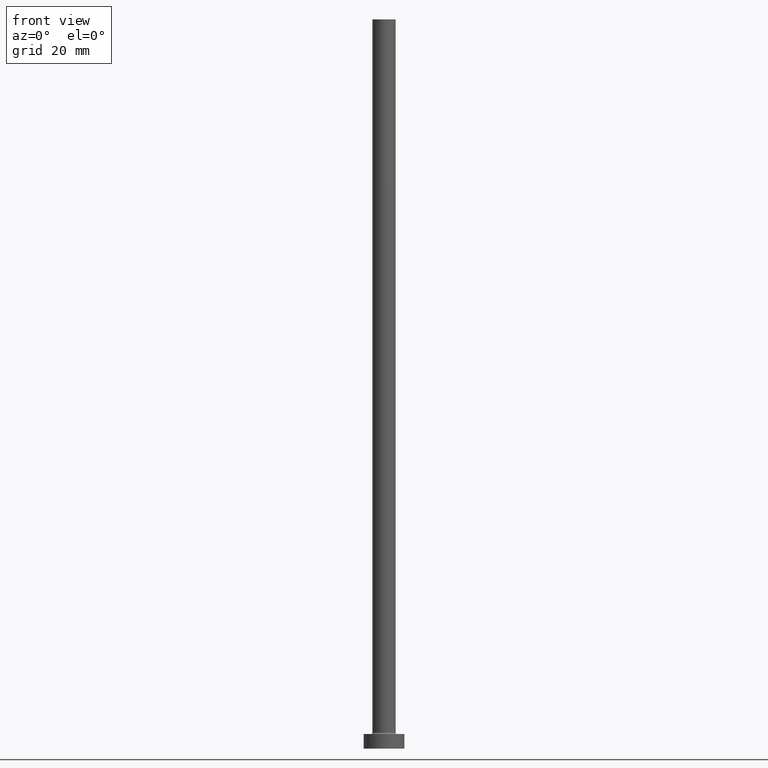
[diagram: clean part render]
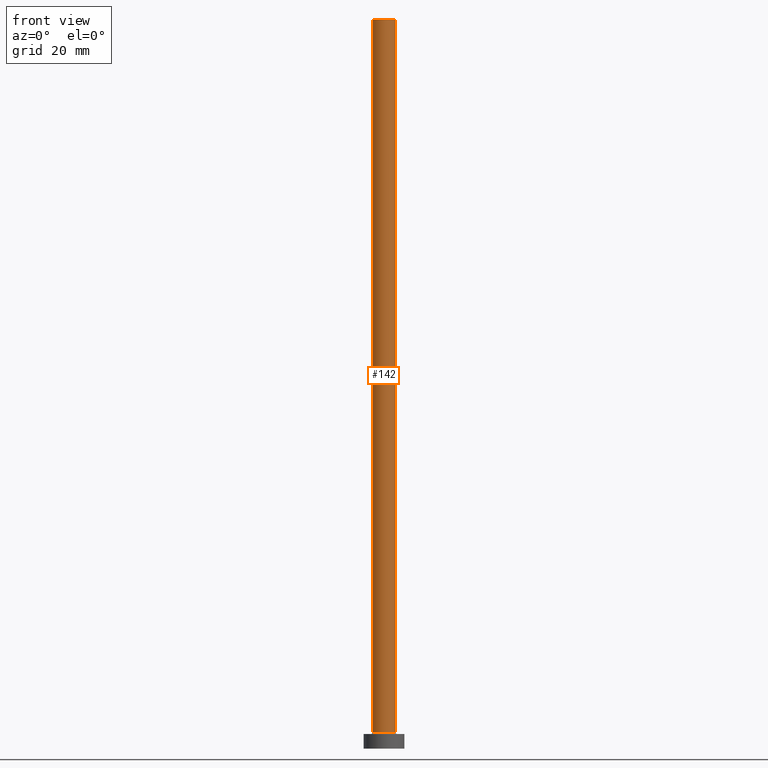
[diagram: same view with one face highlighted and labeled with its STEP entity id]
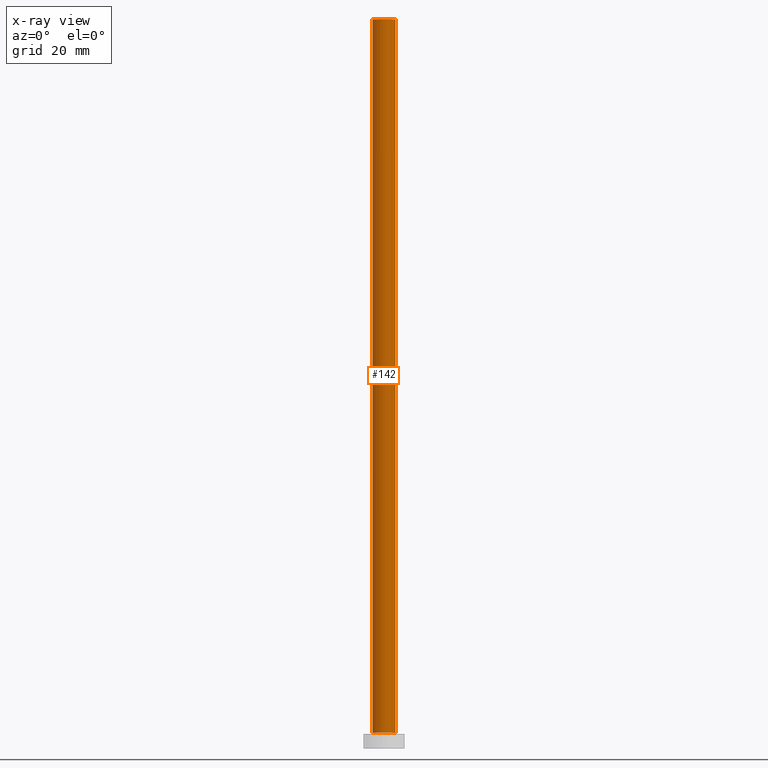
[diagram: x-ray of the same camera — body ghosted, the highlighted face saturated]
A machine part, front view. The second image highlights one B-rep face of the part: STEP entity #142.
The next image is the same camera in x-ray: the body ghosted, the highlighted face saturated — about 0% of this face is hidden behind the body in this view.
In plain terms, the highlighted cylindrical surface (edge-blend (fillet) strip) has radius 4 mm, axis along (-0, -0, -1).
Its self-contained STEP definition (entity closure, byte-faithful):
#7 = VERTEX_POINT ( 'NONE', #350 ) ;
#11 = DIRECTION ( 'NONE',  ( -0.000000000000000000, -0.000000000000000000, -1.000000000000000000 ) ) ;
#29 = CARTESIAN_POINT ( 'NONE',  ( 0.000000000000000000, 0.000000000000000000, 250.0000000000000000 ) ) ;
#40 = VECTOR ( 'NONE', #315, 1000.000000000000000 ) ;
#45 = EDGE_CURVE ( 'NONE', #157, #92, #418, .T. ) ;
#48 = ORIENTED_EDGE ( 'NONE', *, *, #325, .F. ) ;
#52 = AXIS2_PLACEMENT_3D ( 'NONE', #136, #387, #101 ) ;
#56 = ORIENTED_EDGE ( 'NONE', *, *, #376, .T. ) ;
#92 = VERTEX_POINT ( 'NONE', #117 ) ;
#101 = DIRECTION ( 'NONE',  ( 1.000000000000000000, 0.000000000000000000, 0.000000000000000000 ) ) ;
#107 = DIRECTION ( 'NONE',  ( 1.000000000000000000, 0.000000000000000000, 0.000000000000000000 ) ) ;
#117 = CARTESIAN_POINT ( 'NONE',  ( 4.000000000000000000, 4.898587196589412829E-16, 5.500000000000005329 ) ) ;
#128 = EDGE_LOOP ( 'NONE', ( #295, #48, #56, #198 ) ) ;
#135 = CARTESIAN_POINT ( 'NONE',  ( -4.000000000000000000, 0.000000000000000000, 250.0000000000000000 ) ) ;
#136 = CARTESIAN_POINT ( 'NONE',  ( 0.000000000000000000, 0.000000000000000000, 5.500000000000005329 ) ) ;
#142 = ADVANCED_FACE ( 'NONE', ( #156 ), #300, .T. ) ;
#156 = FACE_OUTER_BOUND ( 'NONE', #128, .T. ) ;
#157 = VERTEX_POINT ( 'NONE', #159 ) ;
#159 = CARTESIAN_POINT ( 'NONE',  ( 4.000000000000000000, 4.898587196589412829E-16, 250.0000000000000000 ) ) ;
#190 = AXIS2_PLACEMENT_3D ( 'NONE', #29, #459, #107 ) ;
#198 = ORIENTED_EDGE ( 'NONE', *, *, #364, .T. ) ;
#209 = DIRECTION ( 'NONE',  ( -0.000000000000000000, -0.000000000000000000, -1.000000000000000000 ) ) ;
#258 = VERTEX_POINT ( 'NONE', #454 ) ;
#264 = DIRECTION ( 'NONE',  ( -1.000000000000000000, 0.000000000000000000, 0.000000000000000000 ) ) ;
#295 = ORIENTED_EDGE ( 'NONE', *, *, #45, .F. ) ;
#300 = CYLINDRICAL_SURFACE ( 'NONE', #455, 4.000000000000000000 ) ;
#315 = DIRECTION ( 'NONE',  ( -0.000000000000000000, -0.000000000000000000, -1.000000000000000000 ) ) ;
#321 = CIRCLE ( 'NONE', #190, 4.000000000000000000 ) ;
#325 = EDGE_CURVE ( 'NONE', #7, #157, #321, .T. ) ;
#343 = LINE ( 'NONE', #135, #347 ) ;
#347 = VECTOR ( 'NONE', #209, 1000.000000000000000 ) ;
#350 = CARTESIAN_POINT ( 'NONE',  ( -4.000000000000000000, 0.000000000000000000, 250.0000000000000000 ) ) ;
#364 = EDGE_CURVE ( 'NONE', #258, #92, #392, .T. ) ;
#376 = EDGE_CURVE ( 'NONE', #7, #258, #343, .T. ) ;
#382 = CARTESIAN_POINT ( 'NONE',  ( 4.000000000000000000, 4.898587196589412829E-16, 250.0000000000000000 ) ) ;
#387 = DIRECTION ( 'NONE',  ( 0.000000000000000000, 0.000000000000000000, 1.000000000000000000 ) ) ;
#392 = CIRCLE ( 'NONE', #52, 4.000000000000000000 ) ;
#418 = LINE ( 'NONE', #382, #40 ) ;
#438 = CARTESIAN_POINT ( 'NONE',  ( 0.000000000000000000, 0.000000000000000000, 250.0000000000000000 ) ) ;
#454 = CARTESIAN_POINT ( 'NONE',  ( -4.000000000000000000, 0.000000000000000000, 5.500000000000005329 ) ) ;
#455 = AXIS2_PLACEMENT_3D ( 'NONE', #438, #11, #264 ) ;
#459 = DIRECTION ( 'NONE',  ( 0.000000000000000000, 0.000000000000000000, 1.000000000000000000 ) ) ;